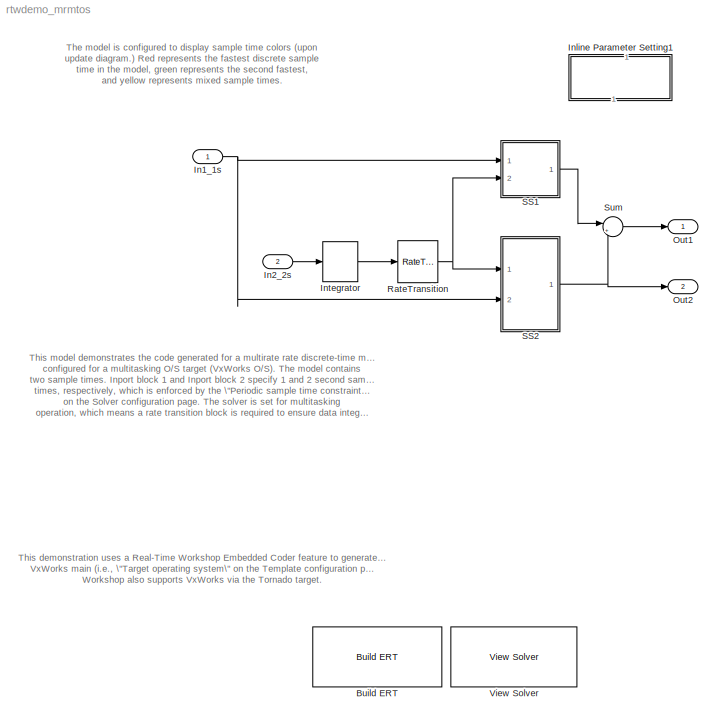
MODEL rtwdemo_mrmtos
KIND model
BLOCK [Reference] Build ERT  REF=rtwdemowidgets/Build ERT
  Ports = []
  ShowPortLabels = on
  SourceBlock = rtwdemowidgets/Build ERT
  attrib_overrides = {}
BLOCK [Inport] In1_1s
  IconDisplay = Port number
  LatchInput = off
  Port = 1
  SampleTime = 1
BLOCK [Inport] In2_2s
  IconDisplay = Port number
  LatchInput = off
  Port = 2
  SampleTime = 2
BLOCK [SubSystem] Inline Parameter Setting1
  MaskDisplay = disp(sprintf('Display Sample\\nTime Colors\\n(double-click)'))
  MaskIconFrame = on
  MaskIconOpaque = on
  MaskIconRotate = none
  MaskIconUnits = autoscale
  MinAlgLoopOccurrences = off
  OpenFcn = m=get_param(bdroot,'name'); eval([m,'([],[],[],''compile'');']); eval([m,'([],[],[],''term'');']);
  Ports = []
  PropExecContextAcrossSSBoundary = on
  RTWSystemCode = Auto
  TreatAsAtomicUnit = off
BLOCK [DiscreteIntegrator] Integrator
  ExternalReset = none
  ICPrevOutput = DiscIntNeverNeededParam
  ICPrevScaledInput = DiscIntNeverNeededParam
  InitialConditionMode = State only (most efficient)
  InitialConditionSource = internal
  IntegratorMethod = Integration: Forward Euler
  Ports = [1, 1]
  SampleTime = -1
  SaturateOnIntegerOverflow = on
BLOCK [Outport] Out1
  BusOutputAsStruct = off
  IconDisplay = Port number
BLOCK [Outport] Out2
  BusOutputAsStruct = off
  IconDisplay = Port number
  Port = 2
BLOCK [RateTransition] RateTransition
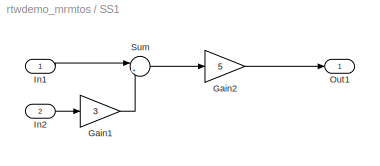
BLOCK [SubSystem] SS1
  MinAlgLoopOccurrences = off
  Ports = [2, 1]
  PropExecContextAcrossSSBoundary = on
  RTWSystemCode = Auto
  TreatAsAtomicUnit = on
BLOCK [Gain] SS1/Gain1
  Gain = 3
BLOCK [Gain] SS1/Gain2
  Gain = 5
BLOCK [Inport] SS1/In1
  IconDisplay = Port number
  LatchInput = off
  Port = 1
BLOCK [Inport] SS1/In2
  IconDisplay = Port number
  LatchInput = off
  Port = 2
BLOCK [Outport] SS1/Out1
  BusOutputAsStruct = off
  IconDisplay = Port number
BLOCK [Sum] SS1/Sum
  IconShape = round
  Inputs = |++
  Ports = [2, 1]
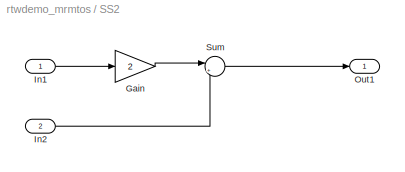
BLOCK [SubSystem] SS2
  MinAlgLoopOccurrences = off
  Ports = [2, 1]
  PropExecContextAcrossSSBoundary = on
  RTWSystemCode = Auto
  TreatAsAtomicUnit = on
BLOCK [Gain] SS2/Gain
  Gain = 2
BLOCK [Inport] SS2/In1
  IconDisplay = Port number
  LatchInput = off
  Port = 1
BLOCK [Inport] SS2/In2
  IconDisplay = Port number
  LatchInput = off
  Port = 2
BLOCK [Outport] SS2/Out1
  BusOutputAsStruct = off
  IconDisplay = Port number
BLOCK [Sum] SS2/Sum
  IconShape = round
  Inputs = |++
  Ports = [2, 1]
BLOCK [Sum] Sum
  IconShape = round
  Inputs = |++
  Ports = [2, 1]
BLOCK [Reference] View Solver  REF=rtwdemowidgets/View Solver
  Ports = []
  ShowPortLabels = on
  SourceBlock = rtwdemowidgets/View Solver
ANNOTATION (root): The model is configured to display sample time colors (upon\nupdate diagram.) Red represents the fastest discrete sample\ntime in the model, green represents the second fastest,\nand yellow represents mixed sample times.
ANNOTATION (root): This demonstration uses a Real-Time Workshop Embedded Coder feature to generate an example\nVxWorks main (i.e., \"Target operating system\" on the Template configuration page.) Real-Time\nWorkshop also supports VxWorks via the Tornado target.
ANNOTATION (root): This model demonstrates the code generated for a multirate rate discrete-time model\nconfigured for a multitasking O/S target (VxWorks O/S). The model contains\ntwo sample times. Inport block 1 and Inport block 2 specify 1 and 2 second sample\ntimes, respectively, which is enforced by the \"Periodic sample time constraint\" option\non the Solver configuration page. The solver is set for multitaski...<+458ch>
NET In1_1s:1 -> SS1:1, SS2:2
LINE In2_2s:1 -> Integrator:1
LINE Integrator:1 -> RateTransition:1
NET RateTransition:1 -> SS1:2, SS2:1
LINE SS1/Gain1:1 -> SS1/Sum:2
LINE SS1/Gain2:1 -> SS1/Out1:1
LINE SS1/In1:1 -> SS1/Sum:1
LINE SS1/In2:1 -> SS1/Gain1:1
LINE SS1/Sum:1 -> SS1/Gain2:1
LINE SS1:1 -> Sum:1
LINE SS2/Gain:1 -> SS2/Sum:1
LINE SS2/In1:1 -> SS2/Gain:1
LINE SS2/In2:1 -> SS2/Sum:2
LINE SS2/Sum:1 -> SS2/Out1:1
NET SS2:1 -> Out2:1, Sum:2
LINE Sum:1 -> Out1:1
note: NET lines group one-source signal fan-out (src -> all destinations, sorted); 1:1 wires keep LINE
